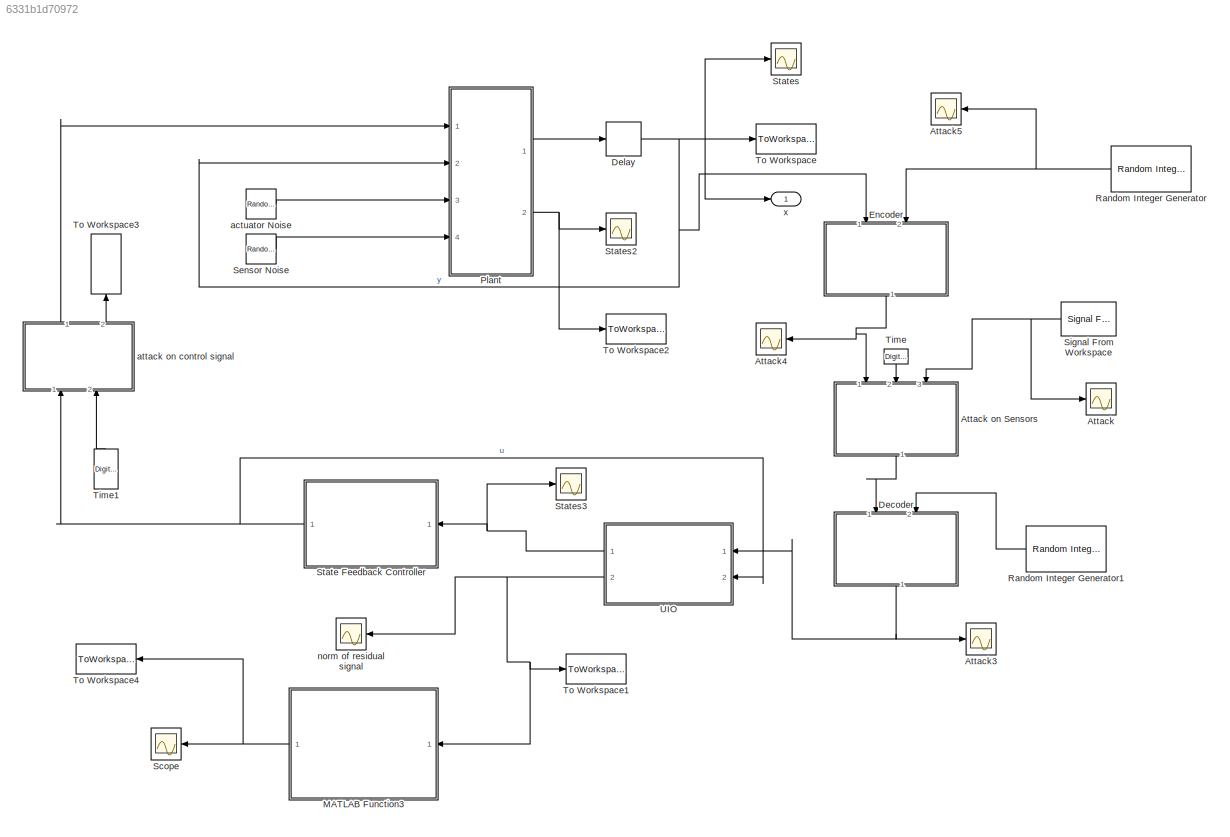
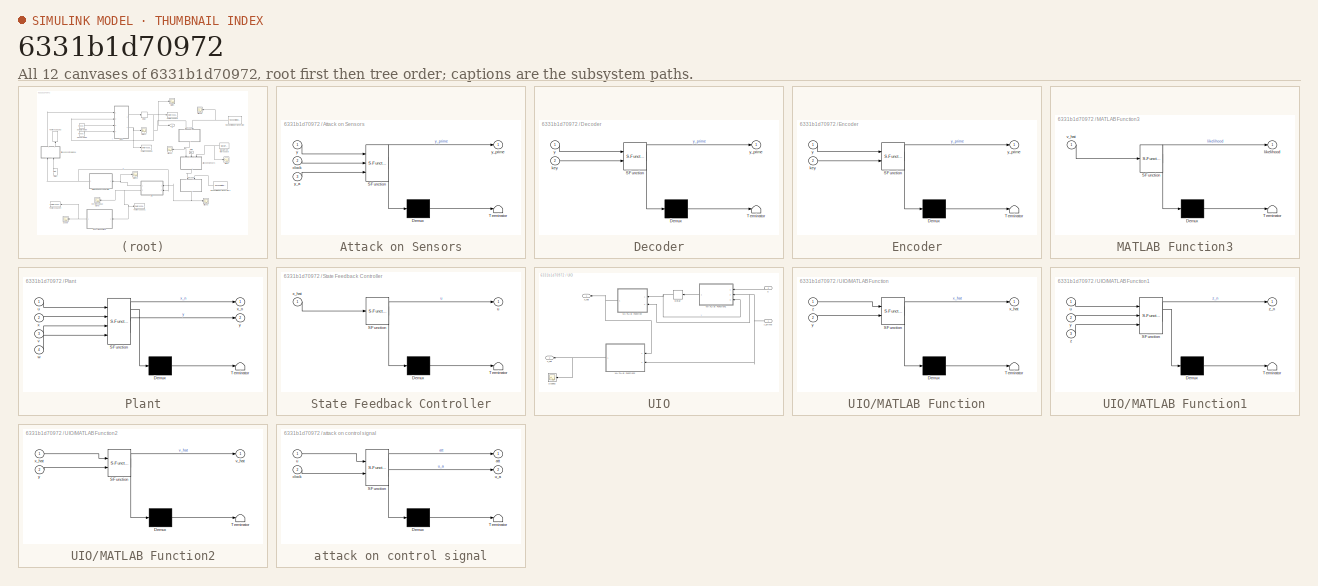
[diagram: thumbnail index - all 12 canvases of the model, root first then tree order]
MODEL slx_6331b1d70972
KIND model
CONFIG AbsTol = auto
CONFIG EnableMultiTasking = off
CONFIG FixedStep = auto
CONFIG MaxStep = auto
CONFIG MinStep = auto
CONFIG RelTol = 1e-3
CONFIG SampleTimeConstraint = Unconstrained
CONFIG SolverName = VariableStepAuto
CONFIG StartTime = 0.0
CONFIG StopTime = 100
BLOCK [Scope] Attack
  Floating = off
  NumInputPorts = 1
  Ports = [1]
  ScopeSpecificationString = Simulink.scopes.TimeScopeBlockCfg('CurrentConfiguration', extmgr.ConfigurationSet(extmgr.Configuration('Core','General UI',true),extmgr.Configuration('Core','Source UI',true),extmgr.Configuration('Sources','WiredSimulink',true,'DataLoggingVariableName','ScopeData2'),extmgr.Configuration('Visuals','Time Domain',true,'SerializedDisplays',{struct('MinYLimReal','-4.34935','MaxYLimReal','0.62615','YLab...<+1487ch>
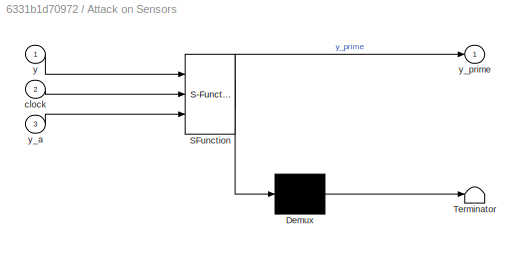
BLOCK [SubSystem] Attack on Sensors
  ErrorFcn = Stateflow.Translate.translate
  NameLocation = left
  PermitHierarchicalResolution = ExplicitOnly
  Ports = [3, 1]
  RequestExecContextInheritance = off
  SFBlockType = MATLAB Function
  TreatAsAtomicUnit = on
BLOCK [Demux] Attack on Sensors/ Demux 
  Outputs = 1
  Ports = [1, 1]
BLOCK [S-Function] Attack on Sensors/ SFunction 
  EnableBusSupport = on
  FunctionName = sf_sfun
  PortCounts = [3 2]
  Ports = [3, 2]
  SFcnIsStateOwnerBlock = off
  SFunctionDeploymentMode = off
  Tag = Stateflow S-Function 2
BLOCK [Terminator] Attack on Sensors/ Terminator 
BLOCK [Inport] Attack on Sensors/clock
  Port = 2
BLOCK [Inport] Attack on Sensors/y
BLOCK [Inport] Attack on Sensors/y_a
  Port = 3
BLOCK [Outport] Attack on Sensors/y_prime
  VectorParamsAs1DForOutWhenUnconnected = off
BLOCK [Scope] Attack3
  Floating = off
  NumInputPorts = 1
  Ports = [1]
  ScopeSpecificationString = Simulink.scopes.TimeScopeBlockCfg('CurrentConfiguration', extmgr.ConfigurationSet(extmgr.Configuration('Core','General UI',true),extmgr.Configuration('Core','Source UI',true),extmgr.Configuration('Sources','WiredSimulink',true,'DataLoggingVariableName','ScopeData3'),extmgr.Configuration('Visuals','Time Domain',true,'SerializedDisplays',{struct('MinYLimReal','-4.34935','MaxYLimReal','0.62615','YLab...<+1461ch>
BLOCK [Scope] Attack4
  Floating = off
  NameLocation = top
  NumInputPorts = 1
  Ports = [1]
  ScopeSpecificationString = Simulink.scopes.TimeScopeBlockCfg('CurrentConfiguration', extmgr.ConfigurationSet(extmgr.Configuration('Core','General UI',true),extmgr.Configuration('Core','Source UI',true),extmgr.Configuration('Sources','WiredSimulink',true,'DataLoggingVariableName','ScopeData4'),extmgr.Configuration('Visuals','Time Domain',true,'SerializedDisplays',{struct('MinYLimReal','-6.58554','MaxYLimReal','59.66167','YLa...<+1463ch>
BLOCK [Scope] Attack5
  Floating = off
  NameLocation = top
  NumInputPorts = 1
  Ports = [1]
  ScopeSpecificationString = Simulink.scopes.TimeScopeBlockCfg('CurrentConfiguration', extmgr.ConfigurationSet(extmgr.Configuration('Core','General UI',true),extmgr.Configuration('Core','Source UI',true),extmgr.Configuration('Sources','WiredSimulink',true,'DataLoggingVariableName','ScopeData5'),extmgr.Configuration('Visuals','Time Domain',true,'SerializedDisplays',{struct('MinYLimReal','-0.25','MaxYLimReal','2.25','YLabelReal...<+1444ch>
BLOCK [SubSystem] Decoder
  ErrorFcn = Stateflow.Translate.translate
  NameLocation = left
  PermitHierarchicalResolution = ExplicitOnly
  Ports = [2, 1]
  RequestExecContextInheritance = off
  SFBlockType = MATLAB Function
  TreatAsAtomicUnit = on
BLOCK [Demux] Decoder/ Demux 
  Outputs = 1
  Ports = [1, 1]
BLOCK [S-Function] Decoder/ SFunction 
  EnableBusSupport = on
  FunctionName = sf_sfun
  PortCounts = [2 2]
  Ports = [2, 2]
  SFcnIsStateOwnerBlock = off
  SFunctionDeploymentMode = off
  Tag = Stateflow S-Function 6
BLOCK [Terminator] Decoder/ Terminator 
BLOCK [Inport] Decoder/key
  Port = 2
BLOCK [Inport] Decoder/y
BLOCK [Outport] Decoder/y_prime
  VectorParamsAs1DForOutWhenUnconnected = off
BLOCK [Delay] Delay
  DelayLength = 1
  InitialCondition = [0.1;0.1]
  InputPortMap = u0
  Ports = [1, 1]
  SampleTime = sample_time
BLOCK [SubSystem] Encoder
  ErrorFcn = Stateflow.Translate.translate
  NameLocation = left
  PermitHierarchicalResolution = ExplicitOnly
  Ports = [2, 1]
  RequestExecContextInheritance = off
  SFBlockType = MATLAB Function
  TreatAsAtomicUnit = on
BLOCK [Demux] Encoder/ Demux 
  Outputs = 1
  Ports = [1, 1]
BLOCK [S-Function] Encoder/ SFunction 
  EnableBusSupport = on
  FunctionName = sf_sfun
  PortCounts = [2 2]
  Ports = [2, 2]
  SFcnIsStateOwnerBlock = off
  SFunctionDeploymentMode = off
  Tag = Stateflow S-Function 5
BLOCK [Terminator] Encoder/ Terminator 
BLOCK [Inport] Encoder/key
  Port = 2
BLOCK [Inport] Encoder/y
BLOCK [Outport] Encoder/y_prime
  VectorParamsAs1DForOutWhenUnconnected = off
BLOCK [SubSystem] MATLAB Function3
  ErrorFcn = Stateflow.Translate.translate
  NameLocation = top
  PermitHierarchicalResolution = ExplicitOnly
  Ports = [1, 1]
  RequestExecContextInheritance = off
  SFBlockType = MATLAB Function
  TreatAsAtomicUnit = on
BLOCK [Demux] MATLAB Function3/ Demux 
  Outputs = 1
  Ports = [1, 1]
BLOCK [S-Function] MATLAB Function3/ SFunction 
  EnableBusSupport = on
  FunctionName = sf_sfun
  PortCounts = [1 2]
  Ports = [1, 2]
  SFcnIsStateOwnerBlock = off
  SFunctionDeploymentMode = off
  Tag = Stateflow S-Function 4
BLOCK [Terminator] MATLAB Function3/ Terminator 
BLOCK [Outport] MATLAB Function3/likelihood
  VectorParamsAs1DForOutWhenUnconnected = off
BLOCK [Inport] MATLAB Function3/v_hat
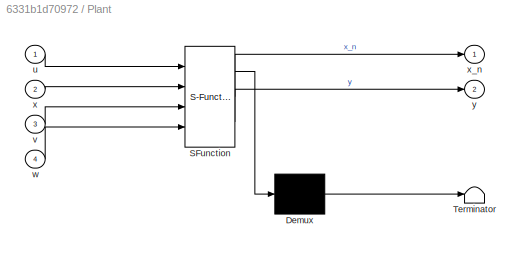
BLOCK [SubSystem] Plant
  ErrorFcn = Stateflow.Translate.translate
  PermitHierarchicalResolution = ExplicitOnly
  Ports = [4, 2]
  RequestExecContextInheritance = off
  SFBlockType = MATLAB Function
  TreatAsAtomicUnit = on
BLOCK [Demux] Plant/ Demux 
  Outputs = 1
  Ports = [1, 1]
BLOCK [S-Function] Plant/ SFunction 
  EnableBusSupport = on
  FunctionName = sf_sfun
  PortCounts = [4 3]
  Ports = [4, 3]
  SFcnIsStateOwnerBlock = off
  SFunctionDeploymentMode = off
  Tag = Stateflow S-Function 1
BLOCK [Terminator] Plant/ Terminator 
BLOCK [Inport] Plant/u
BLOCK [Inport] Plant/v
  Port = 3
BLOCK [Inport] Plant/w
  Port = 4
BLOCK [Inport] Plant/x
  Port = 2
BLOCK [Outport] Plant/x_n
  VectorParamsAs1DForOutWhenUnconnected = off
BLOCK [Outport] Plant/y
  Port = 2
  VectorParamsAs1DForOutWhenUnconnected = off
BLOCK [Reference] Random Integer Generator  REF=commrandsrc3/Random Integer
Generator
  NameLocation = top
  Ports = [0, 1]
  SourceBlock = commrandsrc3/Random Integer\nGenerator
  SourceProductBaseCode = CM
  SourceType = Random Integer Generator
BLOCK [Reference] Random Integer Generator1  REF=commrandsrc3/Random Integer
Generator
  NameLocation = top
  Ports = [0, 1]
  SourceBlock = commrandsrc3/Random Integer\nGenerator
  SourceProductBaseCode = CM
  SourceType = Random Integer Generator
BLOCK [Scope] Scope
  Floating = off
  NameLocation = top
  NumInputPorts = 1
  Ports = [1]
  ScopeSpecificationString = Simulink.scopes.TimeScopeBlockCfg('CurrentConfiguration', extmgr.ConfigurationSet(extmgr.Configuration('Core','General UI',true),extmgr.Configuration('Core','Source UI',true),extmgr.Configuration('Sources','WiredSimulink',true,'DataLoggingVariableName','ScopeData1'),extmgr.Configuration('Visuals','Time Domain',true,'SerializedDisplays',{struct('MinYLimReal','-0.05477','MaxYLimReal','0.49295','YLab...<+1433ch>
BLOCK [RandomNumber] Sensor Noise
  Mean = [0 0]
  SampleTime = sample_time
  Seed = [randi(100) randi(100)]
  Variance = [0.001 0.001]
BLOCK [Reference] Signal From Workspace  REF=dspsrcs4/Signal From
Workspace
  NameLocation = top
  Ports = [0, 1]
  SourceBlock = dspsrcs4/Signal From\nWorkspace
  SourceProductBaseCode = DS
  SourceType = Signal From Workspace
BLOCK [SubSystem] State Feedback Controller
  ErrorFcn = Stateflow.Translate.translate
  NameLocation = top
  PermitHierarchicalResolution = ExplicitOnly
  Ports = [1, 1]
  RequestExecContextInheritance = off
  SFBlockType = MATLAB Function
  TreatAsAtomicUnit = on
BLOCK [Demux] State Feedback Controller/ Demux 
  Outputs = 1
  Ports = [1, 1]
BLOCK [S-Function] State Feedback Controller/ SFunction 
  EnableBusSupport = on
  FunctionName = sf_sfun
  PortCounts = [1 2]
  Ports = [1, 2]
  SFcnIsStateOwnerBlock = off
  SFunctionDeploymentMode = off
  Tag = Stateflow S-Function 3
BLOCK [Terminator] State Feedback Controller/ Terminator 
BLOCK [Outport] State Feedback Controller/u
  VectorParamsAs1DForOutWhenUnconnected = off
BLOCK [Inport] State Feedback Controller/x_hat
BLOCK [Scope] States
  Floating = off
  NumInputPorts = 1
  Ports = [1]
  ScopeSpecificationString = Simulink.scopes.TimeScopeBlockCfg('CurrentConfiguration', extmgr.ConfigurationSet(extmgr.Configuration('Core','General UI',true),extmgr.Configuration('Core','Source UI',true),extmgr.Configuration('Sources','WiredSimulink',true,'DataLoggingVariableName','ScopeData6'),extmgr.Configuration('Visuals','Time Domain',true,'SerializedDisplays',{struct('MinYLimReal','-0.41409','MaxYLimReal','2.21174','YLab...<+1499ch>
BLOCK [Scope] States2
  Floating = off
  NumInputPorts = 1
  Ports = [1]
  ScopeSpecificationString = Simulink.scopes.TimeScopeBlockCfg('CurrentConfiguration', extmgr.ConfigurationSet(extmgr.Configuration('Core','General UI',true),extmgr.Configuration('Core','Source UI',true),extmgr.Configuration('Sources','WiredSimulink',true,'DataLoggingVariableName','ScopeData7'),extmgr.Configuration('Visuals','Time Domain',true,'SerializedDisplays',{struct('MinYLimReal','-0.50543','MaxYLimReal','0.6146','YLabe...<+1484ch>
BLOCK [Scope] States3
  Floating = off
  NumInputPorts = 1
  Ports = [1]
  ScopeSpecificationString = Simulink.scopes.TimeScopeBlockCfg('CurrentConfiguration', extmgr.ConfigurationSet(extmgr.Configuration('Core','General UI',true),extmgr.Configuration('Core','Source UI',true),extmgr.Configuration('Sources','WiredSimulink',true,'DataLoggingVariableName','ScopeData8'),extmgr.Configuration('Visuals','Time Domain',true,'SerializedDisplays',{struct('MinYLimReal','-4.59811','MaxYLimReal','4.25885','YLab...<+1488ch>
BLOCK [DigitalClock] Time
  NameLocation = right
  SampleTime = sample_time
BLOCK [DigitalClock] Time1
  NameLocation = left
  SampleTime = sample_time
BLOCK [ToWorkspace] To Workspace
  FixptAsFi = on
  MaxDataPoints = inf
  Ports = [1]
  SampleTime = sample_time
  SaveFormat = Timeseries
  VariableName = x_k1
BLOCK [ToWorkspace] To Workspace1
  FixptAsFi = on
  MaxDataPoints = inf
  Ports = [1]
  SampleTime = sample_time
  SaveFormat = Timeseries
  VariableName = v_hat
BLOCK [ToWorkspace] To Workspace2
  FixptAsFi = on
  MaxDataPoints = inf
  Ports = [1]
  SampleTime = sample_time
  SaveFormat = Timeseries
  VariableName = sensor_measurement
BLOCK [ToWorkspace] To Workspace3
  FixptAsFi = on
  MaxDataPoints = inf
  NameLocation = right
  Ports = [1]
  SampleTime = sample_time
  SaveFormat = Timeseries
  VariableName = u_a
BLOCK [ToWorkspace] To Workspace4
  FixptAsFi = on
  MaxDataPoints = inf
  NameLocation = top
  Ports = [1]
  SampleTime = sample_time
  SaveFormat = Timeseries
  VariableName = likelihood
BLOCK [SubSystem] UIO
  Ports = [2, 2]
  RequestExecContextInheritance = off
BLOCK [Delay] UIO/Delay
  DelayLength = 1
  InitialCondition = zeros(2,1)
  InputPortMap = u0
  NameLocation = top
  Ports = [1, 1]
  SampleTime = sample_time
BLOCK [SubSystem] UIO/MATLAB Function
  ErrorFcn = Stateflow.Translate.translate
  NameLocation = top
  PermitHierarchicalResolution = ExplicitOnly
  Ports = [2, 1]
  RequestExecContextInheritance = off
  SFBlockType = MATLAB Function
  TreatAsAtomicUnit = on
BLOCK [Demux] UIO/MATLAB Function/ Demux 
  Outputs = 1
  Ports = [1, 1]
BLOCK [S-Function] UIO/MATLAB Function/ SFunction 
  EnableBusSupport = on
  FunctionName = sf_sfun
  PortCounts = [2 2]
  Ports = [2, 2]
  SFcnIsStateOwnerBlock = off
  SFunctionDeploymentMode = off
  Tag = Stateflow S-Function 7
BLOCK [Terminator] UIO/MATLAB Function/ Terminator 
BLOCK [Outport] UIO/MATLAB Function/x_hat
  VectorParamsAs1DForOutWhenUnconnected = off
BLOCK [Inport] UIO/MATLAB Function/y
  Port = 2
BLOCK [Inport] UIO/MATLAB Function/z
BLOCK [SubSystem] UIO/MATLAB Function1
  ErrorFcn = Stateflow.Translate.translate
  NameLocation = top
  PermitHierarchicalResolution = ExplicitOnly
  Ports = [3, 1]
  RequestExecContextInheritance = off
  SFBlockType = MATLAB Function
  TreatAsAtomicUnit = on
BLOCK [Demux] UIO/MATLAB Function1/ Demux 
  Outputs = 1
  Ports = [1, 1]
BLOCK [S-Function] UIO/MATLAB Function1/ SFunction 
  EnableBusSupport = on
  FunctionName = sf_sfun
  PortCounts = [3 2]
  Ports = [3, 2]
  SFcnIsStateOwnerBlock = off
  SFunctionDeploymentMode = off
  Tag = Stateflow S-Function 8
BLOCK [Terminator] UIO/MATLAB Function1/ Terminator 
BLOCK [Inport] UIO/MATLAB Function1/u
BLOCK [Inport] UIO/MATLAB Function1/y
  Port = 2
BLOCK [Inport] UIO/MATLAB Function1/z
  Port = 3
BLOCK [Outport] UIO/MATLAB Function1/z_n
  VectorParamsAs1DForOutWhenUnconnected = off
BLOCK [SubSystem] UIO/MATLAB Function2
  ErrorFcn = Stateflow.Translate.translate
  NameLocation = top
  PermitHierarchicalResolution = ExplicitOnly
  Ports = [2, 1]
  RequestExecContextInheritance = off
  SFBlockType = MATLAB Function
  TreatAsAtomicUnit = on
BLOCK [Demux] UIO/MATLAB Function2/ Demux 
  Outputs = 1
  Ports = [1, 1]
BLOCK [S-Function] UIO/MATLAB Function2/ SFunction 
  EnableBusSupport = on
  FunctionName = sf_sfun
  PortCounts = [2 2]
  Ports = [2, 2]
  SFcnIsStateOwnerBlock = off
  SFunctionDeploymentMode = off
  Tag = Stateflow S-Function 9
BLOCK [Terminator] UIO/MATLAB Function2/ Terminator 
BLOCK [Outport] UIO/MATLAB Function2/v_hat
  VectorParamsAs1DForOutWhenUnconnected = off
BLOCK [Inport] UIO/MATLAB Function2/x_hat
BLOCK [Inport] UIO/MATLAB Function2/y
  Port = 2
BLOCK [Scope] UIO/Scope2
  Floating = off
  NameLocation = top
  NumInputPorts = 1
  Ports = [1]
  ScopeSpecificationString = Simulink.scopes.TimeScopeBlockCfg('CurrentConfiguration', extmgr.ConfigurationSet(extmgr.Configuration('Core','General UI',true),extmgr.Configuration('Core','Source UI',true),extmgr.Configuration('Sources','WiredSimulink',true,'DataLoggingVariableName','ScopeData7'),extmgr.Configuration('Visuals','Time Domain',true,'SerializedDisplays',{struct('MinYLimReal','-6.53419','MaxYLimReal','2.71349','YLab...<+1500ch>
BLOCK [Inport] UIO/u
  Port = 2
BLOCK [Outport] UIO/v_hat
  Port = 2
  VectorParamsAs1DForOutWhenUnconnected = off
BLOCK [Outport] UIO/x_hat
  VectorParamsAs1DForOutWhenUnconnected = off
BLOCK [Inport] UIO/y_prime
  NameLocation = top
BLOCK [RandomNumber] actuator Noise
  Mean = [0 0]
  SampleTime = sample_time
  Seed = [randi(100) randi(100)]
  Variance = [0.001 0.001]
BLOCK [SubSystem] attack on control signal
  ErrorFcn = Stateflow.Translate.translate
  NameLocation = right
  PermitHierarchicalResolution = ExplicitOnly
  Ports = [2, 2]
  RequestExecContextInheritance = off
  SFBlockType = MATLAB Function
  TreatAsAtomicUnit = on
BLOCK [Demux] attack on control signal/ Demux 
  Outputs = 1
  Ports = [1, 1]
BLOCK [S-Function] attack on control signal/ SFunction 
  EnableBusSupport = on
  FunctionName = sf_sfun
  PortCounts = [2 3]
  Ports = [2, 3]
  SFcnIsStateOwnerBlock = off
  SFunctionDeploymentMode = off
  Tag = Stateflow S-Function 11
BLOCK [Terminator] attack on control signal/ Terminator 
BLOCK [Outport] attack on control signal/att
  VectorParamsAs1DForOutWhenUnconnected = off
BLOCK [Inport] attack on control signal/clock
  Port = 2
BLOCK [Inport] attack on control signal/u
BLOCK [Outport] attack on control signal/u_a
  Port = 2
  VectorParamsAs1DForOutWhenUnconnected = off
BLOCK [Scope] norm of residual signal
  Floating = off
  NameLocation = top
  NumInputPorts = 1
  Ports = [1]
  ScopeSpecificationString = Simulink.scopes.TimeScopeBlockCfg('CurrentConfiguration', extmgr.ConfigurationSet(extmgr.Configuration('Core','General UI',true),extmgr.Configuration('Core','Source UI',true),extmgr.Configuration('Sources','WiredSimulink',true,'DataLoggingVariableName','ScopeData9'),extmgr.Configuration('Visuals','Time Domain',true,'SerializedDisplays',{struct('MinYLimReal','-0.21645','MaxYLimReal','0.20038','YLab...<+1487ch>
BLOCK [Outport] x 
  VectorParamsAs1DForOutWhenUnconnected = off
LINE Attack on Sensors:1 -> Decoder:1
NET Decoder:1 -> Attack3:1, UIO:1
NET Delay:1 -> Encoder:1, Plant:2, States:1, To Workspace:1, x :1
NET Encoder:1 -> Attack on Sensors:1, Attack4:1
NET MATLAB Function3:1 -> Scope:1, To Workspace4:1
LINE Plant:1 -> Delay:1
NET Plant:2 -> States2:1, To Workspace2:1
LINE Random Integer Generator1:1 -> Decoder:2
NET Random Integer Generator:1 -> Attack5:1, Encoder:2
LINE Sensor Noise:1 -> Plant:4
NET Signal From Workspace:1 -> Attack on Sensors:3, Attack:1
NET State Feedback Controller:1 -> UIO:2, attack on control signal:1
LINE Time1:1 -> attack on control signal:2
LINE Time:1 -> Attack on Sensors:2
NET UIO/Delay:1 -> UIO/MATLAB Function1:3, UIO/MATLAB Function:1
LINE UIO/MATLAB Function1:1 -> UIO/Delay:1
NET UIO/MATLAB Function2:1 -> UIO/Scope2:1, UIO/v_hat:1
NET UIO/MATLAB Function:1 -> UIO/MATLAB Function2:1, UIO/x_hat:1
LINE UIO/u:1 -> UIO/MATLAB Function1:1
NET UIO/y_prime:1 -> UIO/MATLAB Function1:2, UIO/MATLAB Function2:2, UIO/MATLAB Function:2
NET UIO:1 -> State Feedback Controller:1, States3:1
NET UIO:2 -> MATLAB Function3:1, To Workspace1:1, norm of residual signal:1
LINE actuator Noise:1 -> Plant:3
LINE attack on control signal:1 -> Plant:1
LINE attack on control signal:2 -> To Workspace3:1
note: NET lines group one-source signal fan-out (src -> all destinations, sorted); 1:1 wires keep LINE
CHART Plant states=1 transitions=1
  STATE_LABEL 'eML_blk_kernel()'
  STATE_LABEL 'SCRIPT:\nfunction [x_n, y] = fcn(u, x, v, w)\n\n%A=[1.0000    0.0001   -0.0010;0.5747    1.0000   -0.0003;0.0162    0.0000    1.0000];\n%B = [0.1   -0.2; -0.0536    0.0332;0.1955   -0.5294];\n\nA = [0.8 0; \n    0.5 1];\nB = [1;\n    0.5];\nC = [2 0.5;\n    0 1];\nD = 0;\n\nx_n = A*x + B*u + v;\ny = C*x + D*u + w;\n'
CHART Attack on Sensors states=1 transitions=1
  STATE_LABEL 'eML_blk_kernel()'
  STATE_LABEL 'SCRIPT:\nfunction y_prime = fcn(y, clock, y_a)\n% this function should contain the attacker action on the sensor\n% measurements\nsigma1 = [2 -0.5;-0.5 1];\nsigma2 = [1 -1;2 0];\n\ny_prime = 40*y_a;\n% y_prime = y;\n\nend\n\n   \n\n'
CHART State Feedback Controller states=1 transitions=1
  STATE_LABEL 'eML_blk_kernel()'
  STATE_LABEL 'SCRIPT:\nfunction u  = Controller(x_hat)\n%two tanks model \n\n\n\nK = [0.1 -0.1];\n\nu = K*x_hat;\n\n\n\n'
CHART MATLAB Function3 states=1 transitions=1
  STATE_LABEL 'eML_blk_kernel()'
  STATE_LABEL "SCRIPT:\nfunction likelihood = Anomaly_Detector(v_hat)\n\nmu = -0.0070;\nsigma = 0.0272;\n\n\nlikelihood = exp(-0.5*(v_hat(4:4)-mu')' * inv(sigma) * (v_hat(4:4)-mu'));\n\nend\n"
CHART Encoder states=1 transitions=1
  STATE_LABEL 'eML_blk_kernel()'
  STATE_LABEL 'SCRIPT:\nfunction y_prime = fcn(y,key)\n% this function should contain the attacker action on the sensor\n% measurements\n\n\n% trans1 = [-0.547381274157748 0.836883349518582 ; 0.4 0.5];\n% trans2 = [-0.547381274157748 0.836883349518582; 0.836883349518582 0.547381274157748];\n% \ntrans1 = [-0.547381274157748 0;\n    -0.547381274157748 0];\ntrans2 = [-0.547381274157748 0.836883349518582; \n    0.83688334951858...<+120ch>'
CHART Decoder states=1 transitions=1
  STATE_LABEL 'eML_blk_kernel()'
  STATE_LABEL 'SCRIPT:\nfunction y_prime = fcn(y,key)\n% this function should contain the attacker action on the sensor\n% measurements\n\n% trans1 = [-0.547381274157748 0.836883349518582; 0.4 0.5];\n% trans2 = [-0.547381274157748 0.836883349518582;0.836883349518582 0.547381274157748];\n\ntrans1 = [-0.547381274157748 0;\n    -0.547381274157748 0];\ntrans2 = [-0.547381274157748 0.836883349518582; \n    0.836883349518582 0.5...<+116ch>'
CHART UIO/MATLAB Function states=1 transitions=1
  STATE_LABEL 'eML_blk_kernel()'
  STATE_LABEL "SCRIPT:\nfunction x_hat = estimator(z,y)\n\nM = [0.666666666666667,-0.666666666666667;\n    0.666666666666667,-0.666666666666667];\n\nx_hat = z + M*y';\n"
CHART UIO/MATLAB Function1 states=1 transitions=1
  STATE_LABEL 'eML_blk_kernel()'
  STATE_LABEL "SCRIPT:\nfunction z_n = UIO(u,y,z)\n\nA = [0.8 0; 0.5 1];\nB = [1;0.5];\nC = [2 0.5;0 1];\nD = 0;\n\nM = [0.666666666666667,-0.666666666666667;\n    0.666666666666667,-0.666666666666667];\n\n\n\n\nL6 = [-0.0515    0.3474;\n   -0.2058    1.3897];\n\nz_n = (eye(2)-M*C)*(A*z + A*M*y'+B*u) + L6*(y' - C*z - C*M*y');\n\nx_hat = z + M*y';\n\n\n\n"
CHART UIO/MATLAB Function2 states=1 transitions=1
  STATE_LABEL 'eML_blk_kernel()'
  STATE_LABEL "SCRIPT:\nfunction v_hat = unknown_estimator(x_hat,y)\n\nA = [0.8 0; 0.5 1];\nB = [1;0.5];\nC = [2 0.5;0 1];\n% D = 0;\n\nE = [1;1];\nD = [zeros(2,2) eye(2,2)];\nq = pinv(D)*y' - pinv(D)*C*x_hat;\nv_hat = q;\n"
CHART attack on control signal states=1 transitions=1
  STATE_LABEL 'eML_blk_kernel()'
  STATE_LABEL 'SCRIPT:\nfunction [att,u_a] = attack(u,clock)\n\natt = u;\nu_a = 1;\nend\n\n'
CHART  states=0 transitions=0
CHART  states=0 transitions=0
CHART  states=0 transitions=0
CHART  states=0 transitions=0
CHART  states=0 transitions=0
CHART  states=0 transitions=0
CHART  states=0 transitions=0
CHART  states=0 transitions=0
CHART  states=0 transitions=0
CHART  states=0 transitions=0
